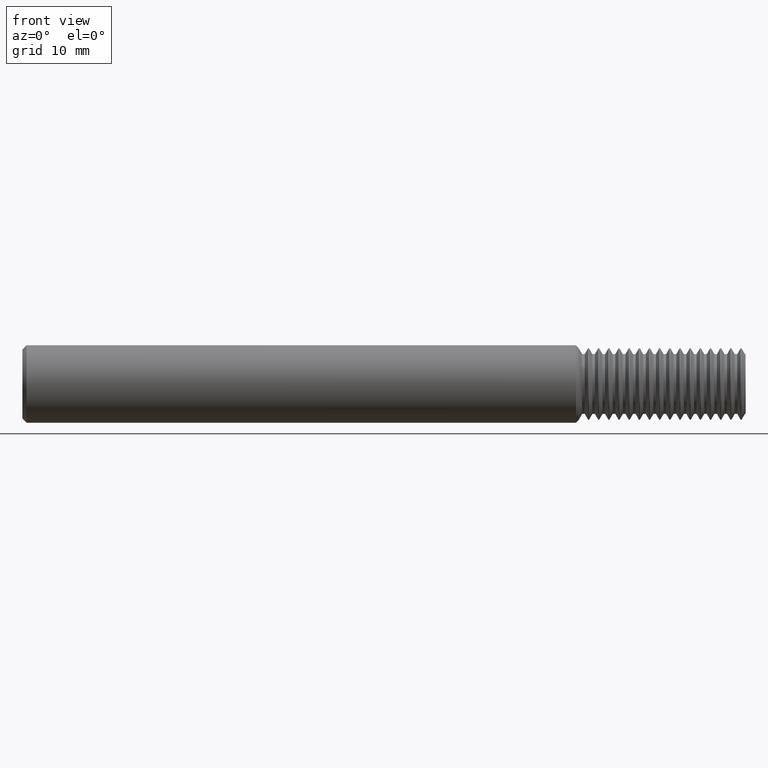
[diagram: clean part render]
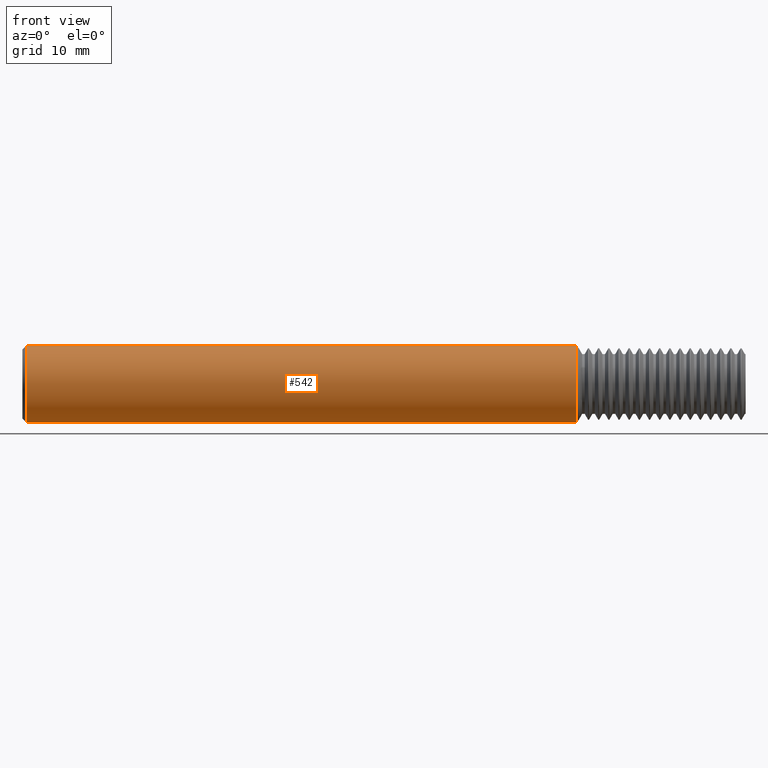
[diagram: same view with one face highlighted and labeled with its STEP entity id]
A machine part, front view. The second image highlights one B-rep face of the part: STEP entity #542.
In plain terms, the highlighted cylindrical surface (partial cylindrical patch) has radius 4.7587 mm, axis along (-1, -0, -0).
Its self-contained STEP definition (entity closure, byte-faithful):
#97 = CARTESIAN_POINT ( 'NONE',  ( 0.000000000000000000, 0.000000000000000000, 0.1873499999999999888 ) ) ;
#101 = DIRECTION ( 'NONE',  ( 1.000000000000000000, 0.000000000000000000, 0.000000000000000000 ) ) ;
#167 = AXIS2_PLACEMENT_3D ( 'NONE', #2432, #1297, #3300 ) ;
#273 = VERTEX_POINT ( 'NONE', #3194 ) ;
#385 = DIRECTION ( 'NONE',  ( -1.000000000000000000, -0.000000000000000000, -0.000000000000000000 ) ) ;
#522 = ORIENTED_EDGE ( 'NONE', *, *, #1103, .F. ) ;
#542 = ADVANCED_FACE ( 'NONE', ( #2485 ), #3619, .T. ) ;
#626 = CARTESIAN_POINT ( 'NONE',  ( 0.000000000000000000, 2.294375778202566330E-17, -0.1873499999999999888 ) ) ;
#709 = CARTESIAN_POINT ( 'NONE',  ( 2.679149999999999920, 2.294375778202566330E-17, -0.1873499999999999888 ) ) ;
#842 = DIRECTION ( 'NONE',  ( 0.000000000000000000, 0.000000000000000000, 1.000000000000000000 ) ) ;
#990 = AXIS2_PLACEMENT_3D ( 'NONE', #2851, #101, #3444 ) ;
#1081 = EDGE_CURVE ( 'NONE', #273, #1589, #2397, .T. ) ;
#1103 = EDGE_CURVE ( 'NONE', #1592, #1589, #2551, .T. ) ;
#1152 = ORIENTED_EDGE ( 'NONE', *, *, #2110, .T. ) ;
#1231 = CARTESIAN_POINT ( 'NONE',  ( 0.02000000000000060757, 0.000000000000000000, -0.1873499999999999888 ) ) ;
#1259 = EDGE_LOOP ( 'NONE', ( #522, #1152, #1695, #2074 ) ) ;
#1297 = DIRECTION ( 'NONE',  ( -1.000000000000000000, -0.000000000000000000, -0.000000000000000000 ) ) ;
#1404 = DIRECTION ( 'NONE',  ( -1.000000000000000000, -0.000000000000000000, -0.000000000000000000 ) ) ;
#1423 = CARTESIAN_POINT ( 'NONE',  ( 0.000000000000000000, 0.000000000000000000, 0.000000000000000000 ) ) ;
#1589 = VERTEX_POINT ( 'NONE', #1231 ) ;
#1592 = VERTEX_POINT ( 'NONE', #709 ) ;
#1632 = CARTESIAN_POINT ( 'NONE',  ( 2.679149999999999920, 0.000000000000000000, 0.1873499999999999888 ) ) ;
#1695 = ORIENTED_EDGE ( 'NONE', *, *, #2407, .T. ) ;
#1807 = VECTOR ( 'NONE', #2323, 39.37007874015748143 ) ;
#2007 = LINE ( 'NONE', #97, #2593 ) ;
#2074 = ORIENTED_EDGE ( 'NONE', *, *, #1081, .T. ) ;
#2080 = AXIS2_PLACEMENT_3D ( 'NONE', #1423, #1404, #842 ) ;
#2110 = EDGE_CURVE ( 'NONE', #1592, #2129, #3330, .T. ) ;
#2129 = VERTEX_POINT ( 'NONE', #1632 ) ;
#2323 = DIRECTION ( 'NONE',  ( -1.000000000000000000, -0.000000000000000000, -0.000000000000000000 ) ) ;
#2397 = CIRCLE ( 'NONE', #990, 0.1873499999999999888 ) ;
#2407 = EDGE_CURVE ( 'NONE', #2129, #273, #2007, .T. ) ;
#2432 = CARTESIAN_POINT ( 'NONE',  ( 2.679149999999999920, 0.000000000000000000, 0.000000000000000000 ) ) ;
#2485 = FACE_OUTER_BOUND ( 'NONE', #1259, .T. ) ;
#2551 = LINE ( 'NONE', #626, #1807 ) ;
#2593 = VECTOR ( 'NONE', #385, 39.37007874015748143 ) ;
#2851 = CARTESIAN_POINT ( 'NONE',  ( 0.02000000000000060757, 0.000000000000000000, 0.000000000000000000 ) ) ;
#3194 = CARTESIAN_POINT ( 'NONE',  ( 0.02000000000000060757, 2.294375778202566330E-17, 0.1873499999999999888 ) ) ;
#3300 = DIRECTION ( 'NONE',  ( 0.000000000000000000, 0.000000000000000000, 1.000000000000000000 ) ) ;
#3330 = CIRCLE ( 'NONE', #167, 0.1873499999999999888 ) ;
#3444 = DIRECTION ( 'NONE',  ( 0.000000000000000000, 0.000000000000000000, -1.000000000000000000 ) ) ;
#3619 = CYLINDRICAL_SURFACE ( 'NONE', #2080, 0.1873499999999999888 ) ;